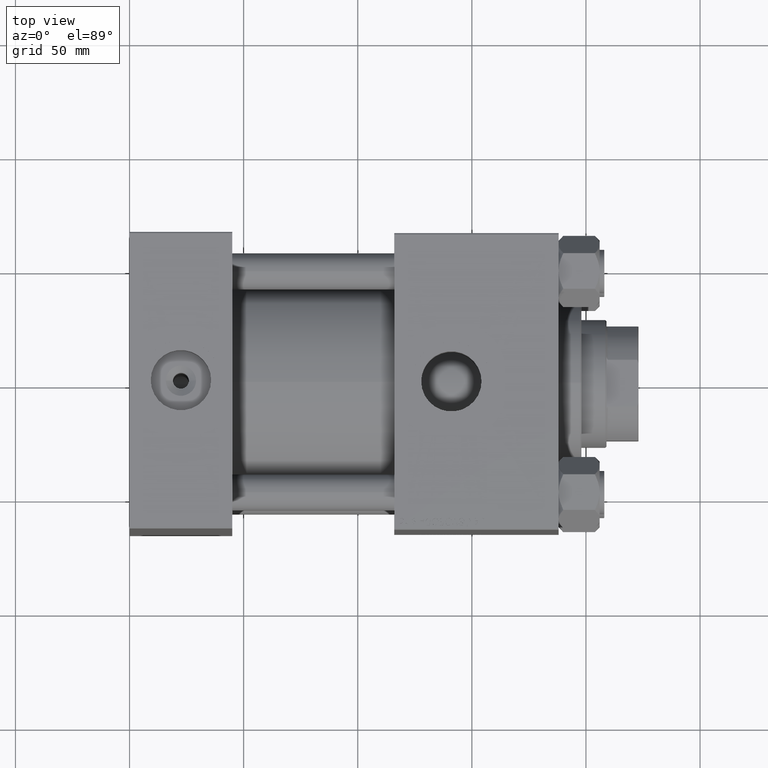
[diagram: clean part render]
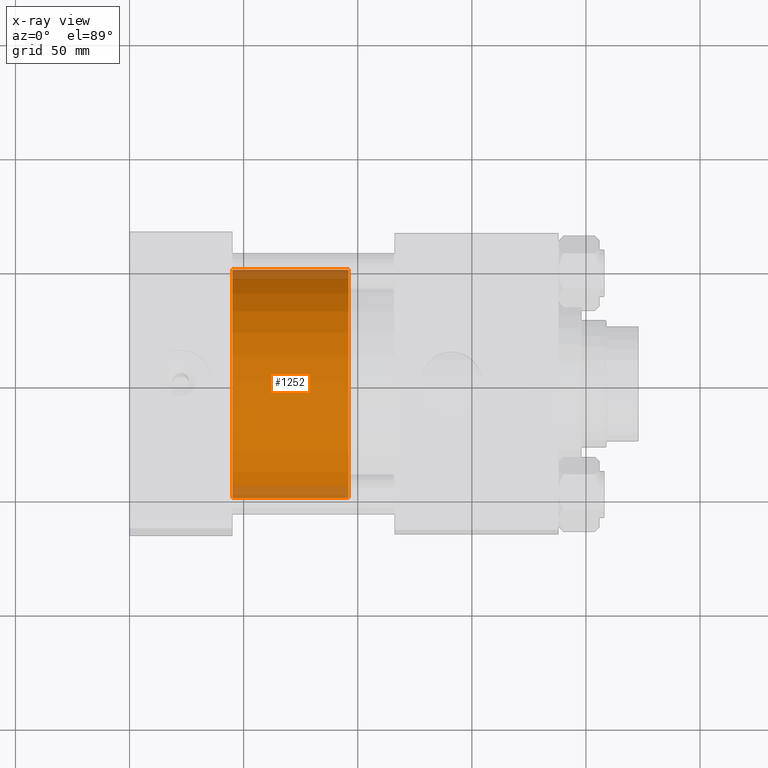
[diagram: x-ray — body ghosted, one internal face saturated and labeled with its STEP entity id]
A machine part, top view, then the same camera in x-ray: the body is ghosted and one INTERNAL B-rep face — a face not visible from any outside direction — is saturated and labeled: STEP entity #1252.
In plain terms, the highlighted cylindrical surface (partial cylindrical patch) has radius 50 mm, axis along (-1, 0, 0).
Its self-contained STEP definition (entity closure, byte-faithful):
#13 = AXIS2_PLACEMENT_3D ( 'NONE', #2881, #19468, #49629 ) ;
#1252 = ADVANCED_FACE ( 'NONE', ( #30188 ), #45788, .T. ) ;
#1876 = ORIENTED_EDGE ( 'NONE', *, *, #38855, .F. ) ;
#2881 = CARTESIAN_POINT ( 'NONE',  ( 0.000000000000000000, 0.000000000000000000, 51.00000000000000000 ) ) ;
#6737 = ORIENTED_EDGE ( 'NONE', *, *, #35424, .T. ) ;
#13376 = EDGE_LOOP ( 'NONE', ( #1876, #36762, #14320, #6737 ) ) ;
#14320 = ORIENTED_EDGE ( 'NONE', *, *, #38324, .T. ) ;
#18796 = DIRECTION ( 'NONE',  ( 0.000000000000000000, 0.000000000000000000, 1.000000000000000000 ) ) ;
#19304 = DIRECTION ( 'NONE',  ( 1.000000000000000000, 0.000000000000000000, 0.000000000000000000 ) ) ;
#19427 = CARTESIAN_POINT ( 'NONE',  ( 50.00000000000000000, 6.123233995736766085E-15, 51.00000000000000000 ) ) ;
#19468 = DIRECTION ( 'NONE',  ( -0.000000000000000000, -0.000000000000000000, -1.000000000000000000 ) ) ;
#20622 = VERTEX_POINT ( 'NONE', #34769 ) ;
#20740 = LINE ( 'NONE', #36573, #39790 ) ;
#22132 = CARTESIAN_POINT ( 'NONE',  ( 50.00000000000000000, 6.123233995736766085E-15, 0.000000000000000000 ) ) ;
#23385 = CARTESIAN_POINT ( 'NONE',  ( 0.000000000000000000, 0.000000000000000000, 0.000000000000000000 ) ) ;
#28069 = AXIS2_PLACEMENT_3D ( 'NONE', #38646, #31221, #47079 ) ;
#28244 = AXIS2_PLACEMENT_3D ( 'NONE', #23385, #18796, #19304 ) ;
#29109 = EDGE_CURVE ( 'NONE', #20622, #32235, #50103, .T. ) ;
#29146 = DIRECTION ( 'NONE',  ( -0.000000000000000000, -0.000000000000000000, -1.000000000000000000 ) ) ;
#29309 = VERTEX_POINT ( 'NONE', #36693 ) ;
#29876 = CIRCLE ( 'NONE', #28244, 50.00000000000000000 ) ;
#30188 = FACE_OUTER_BOUND ( 'NONE', #13376, .T. ) ;
#31221 = DIRECTION ( 'NONE',  ( 0.000000000000000000, 0.000000000000000000, 1.000000000000000000 ) ) ;
#32235 = VERTEX_POINT ( 'NONE', #19427 ) ;
#34769 = CARTESIAN_POINT ( 'NONE',  ( -50.00000000000000000, 0.000000000000000000, 51.00000000000000000 ) ) ;
#35376 = LINE ( 'NONE', #47394, #50394 ) ;
#35424 = EDGE_CURVE ( 'NONE', #29309, #44919, #29876, .T. ) ;
#36573 = CARTESIAN_POINT ( 'NONE',  ( 50.00000000000000000, 6.123233995736766085E-15, 51.00000000000000000 ) ) ;
#36693 = CARTESIAN_POINT ( 'NONE',  ( -50.00000000000000000, 0.000000000000000000, 0.000000000000000000 ) ) ;
#36762 = ORIENTED_EDGE ( 'NONE', *, *, #29109, .F. ) ;
#38324 = EDGE_CURVE ( 'NONE', #20622, #29309, #35376, .T. ) ;
#38646 = CARTESIAN_POINT ( 'NONE',  ( 0.000000000000000000, 0.000000000000000000, 51.00000000000000000 ) ) ;
#38855 = EDGE_CURVE ( 'NONE', #32235, #44919, #20740, .T. ) ;
#39469 = DIRECTION ( 'NONE',  ( -0.000000000000000000, -0.000000000000000000, -1.000000000000000000 ) ) ;
#39790 = VECTOR ( 'NONE', #29146, 1000.000000000000000 ) ;
#44919 = VERTEX_POINT ( 'NONE', #22132 ) ;
#45788 = CYLINDRICAL_SURFACE ( 'NONE', #13, 50.00000000000000000 ) ;
#47079 = DIRECTION ( 'NONE',  ( 1.000000000000000000, 0.000000000000000000, 0.000000000000000000 ) ) ;
#47394 = CARTESIAN_POINT ( 'NONE',  ( -50.00000000000000000, 0.000000000000000000, 51.00000000000000000 ) ) ;
#49629 = DIRECTION ( 'NONE',  ( -1.000000000000000000, 0.000000000000000000, 0.000000000000000000 ) ) ;
#50103 = CIRCLE ( 'NONE', #28069, 50.00000000000000000 ) ;
#50394 = VECTOR ( 'NONE', #39469, 1000.000000000000000 ) ;